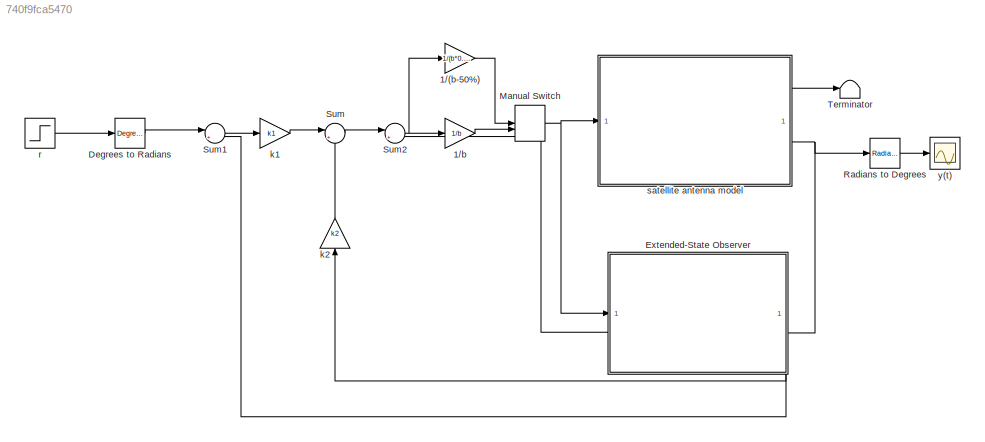
MODEL slx_740f9fca5470
KIND model
CONFIG AbsTol = auto
CONFIG EnableMultiTasking = off
CONFIG FixedStep = 0.01
CONFIG MaxStep = auto
CONFIG MinStep = auto
CONFIG RelTol = 1e-3
CONFIG SampleTimeConstraint = Unconstrained
CONFIG SolverName = ode3
CONFIG StartTime = 0.0
CONFIG StopTime = 20
BLOCK [Gain] 1//(b-50%)
  Gain = 1/(b*0.5)
BLOCK [Gain] 1//b
  Gain = 1/b
BLOCK [Reference] Degrees to Radians  REF=simulink_extras/Transformations/Degrees to
Radians
  SourceBlock = simulink_extras/Transformations/Degrees to\nRadians
  SourceType = DegreesToRadians
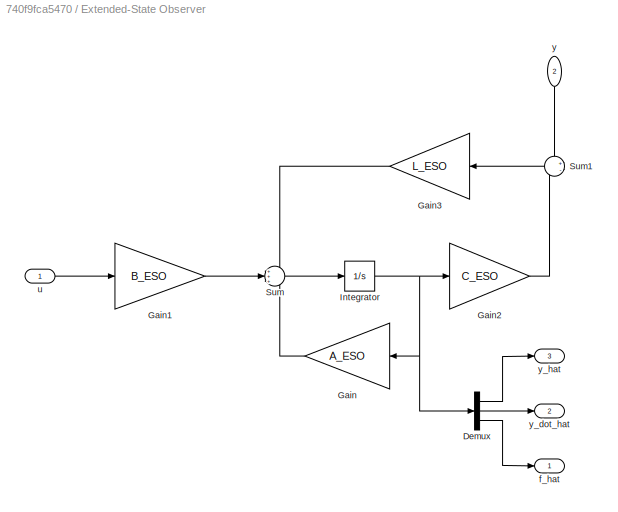
BLOCK [SubSystem] Extended-State Observer
  NameLocation = top
  PortSchema = {"entries":[{"content":{"sides":[{"content":{"connectorIds":["In1"]},"type":"ConnectorPlacement.EquallySpacedRectSide","uuid":"e39c489f-7ce3-4515-bfb3-5978cf16689b"},{"content":{"connectorIds":["In2"],"side":"RIGHT"},"type":"ConnectorPlacement.EquallySpacedRectSide","uuid":"c323375b-3042-4327-9d10-0e78d49b9c28"},{"content":{"connectorIds":[],"side":"TOP"},"type":"ConnectorPlacement.EquallySpacedRe...<+403ch>
BLOCK [Demux] Extended-State Observer/Demux
  Outputs = 3
BLOCK [Gain] Extended-State Observer/Gain
  Gain = A_ESO
  Multiplication = Matrix(K*u) (u vector)
BLOCK [Gain] Extended-State Observer/Gain1
  Gain = B_ESO
  Multiplication = Matrix(K*u) (u vector)
BLOCK [Gain] Extended-State Observer/Gain2
  Gain = C_ESO
  Multiplication = Matrix(K*u) (u vector)
BLOCK [Gain] Extended-State Observer/Gain3
  Gain = L_ESO
  Multiplication = Matrix(K*u) (u vector)
BLOCK [Integrator] Extended-State Observer/Integrator
  InitialCondition = zeros(3,1)
BLOCK [Sum] Extended-State Observer/Sum
  Inputs = +++
BLOCK [Sum] Extended-State Observer/Sum1
  Inputs = +-
BLOCK [Outport] Extended-State Observer/f_hat
BLOCK [Inport] Extended-State Observer/u
BLOCK [Inport] Extended-State Observer/y
  NameLocation = left
  Port = 2
BLOCK [Outport] Extended-State Observer/y_dot_hat
  Port = 2
BLOCK [Outport] Extended-State Observer/y_hat
  Port = 3
BLOCK [ManualSwitch] Manual Switch
BLOCK [Reference] Radians to Degrees  REF=simulink_extras/Transformations/Radians
to Degrees
  SourceBlock = simulink_extras/Transformations/Radians\nto Degrees
  SourceType = RadiansToDegrees
BLOCK [Sum] Sum
  Inputs = |+-
BLOCK [Sum] Sum1
  Inputs = |+-
BLOCK [Sum] Sum2
  Inputs = |+-
BLOCK [Terminator] Terminator
BLOCK [Gain] k1
  Gain = k1
BLOCK [Gain] k2
  Gain = k2
  NameLocation = left
BLOCK [Step] r
  After = 90
  Before = 30
  SampleTime = 0
  Time = 5
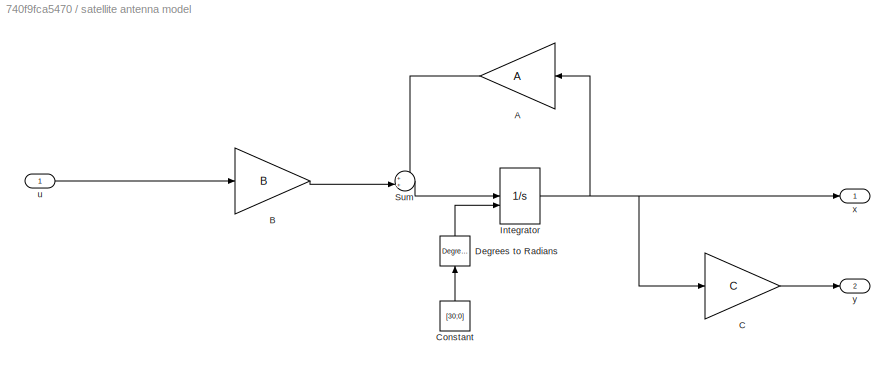
BLOCK [SubSystem] satellite antenna model
BLOCK [Gain] satellite antenna model/A
  Gain = A
  Multiplication = Matrix(K*u) (u vector)
BLOCK [Gain] satellite antenna model/B
  Gain = B
  Multiplication = Matrix(K*u) (u vector)
BLOCK [Gain] satellite antenna model/C
  Gain = C
  Multiplication = Matrix(K*u) (u vector)
BLOCK [Constant] satellite antenna model/Constant
  NameLocation = right
  Value = [30;0]
  VectorParams1D = off
BLOCK [Reference] satellite antenna model/Degrees to Radians  REF=simulink_extras/Transformations/Degrees to
Radians
  NameLocation = right
  SourceBlock = simulink_extras/Transformations/Degrees to\nRadians
  SourceType = DegreesToRadians
BLOCK [Integrator] satellite antenna model/Integrator
  InitialCondition = [0.1;0]
  InitialConditionSource = external
BLOCK [Sum] satellite antenna model/Sum
  Inputs = ++|
BLOCK [Inport] satellite antenna model/u
BLOCK [Outport] satellite antenna model/x
BLOCK [Outport] satellite antenna model/y
  Port = 2
BLOCK [Scope] y(t)
  Floating = off
  NumInputPorts = 1
  ScopeSpecificationString = Simulink.scopes.TimeScopeBlockCfg('CurrentConfiguration', extmgr.ConfigurationSet(extmgr.Configuration('Core','General UI',true),extmgr.Configuration('Core','Source UI',true),extmgr.Configuration('Sources','WiredSimulink',true),extmgr.Configuration('Visuals','Time Domain',true,'SerializedDisplays',{struct('MinYLimReal','-23.69122','MaxYLimReal','109.83818','YLabelReal','','MinYLimMag','0.00000','M...<+1404ch>
LINE 1//(b-50%):1 -> Manual Switch:1
LINE 1//b:1 -> Manual Switch:2
LINE Degrees to Radians:1 -> Sum1:1
LINE Extended-State Observer/Demux:1 -> Extended-State Observer/y_hat:1
LINE Extended-State Observer/Demux:2 -> Extended-State Observer/y_dot_hat:1
LINE Extended-State Observer/Demux:3 -> Extended-State Observer/f_hat:1
LINE Extended-State Observer/Gain1:1 -> Extended-State Observer/Sum:2
LINE Extended-State Observer/Gain2:1 -> Extended-State Observer/Sum1:2
LINE Extended-State Observer/Gain3:1 -> Extended-State Observer/Sum:1
LINE Extended-State Observer/Gain:1 -> Extended-State Observer/Sum:3
NET Extended-State Observer/Integrator:1 -> Extended-State Observer/Demux:1, Extended-State Observer/Gain2:1, Extended-State Observer/Gain:1
LINE Extended-State Observer/Sum1:1 -> Extended-State Observer/Gain3:1
LINE Extended-State Observer/Sum:1 -> Extended-State Observer/Integrator:1
LINE Extended-State Observer/u:1 -> Extended-State Observer/Gain1:1
LINE Extended-State Observer/y:1 -> Extended-State Observer/Sum1:1
LINE Extended-State Observer:1 -> Sum2:2
LINE Extended-State Observer:2 -> k2:1
LINE Extended-State Observer:3 -> Sum1:2
NET Manual Switch:1 -> Extended-State Observer:1, satellite antenna model:1
LINE Radians to Degrees:1 -> y(t):1
LINE Sum1:1 -> k1:1
NET Sum2:1 -> 1//(b-50%):1, 1//b:1
LINE Sum:1 -> Sum2:1
LINE k1:1 -> Sum:1
LINE k2:1 -> Sum:2
LINE r:1 -> Degrees to Radians:1
LINE satellite antenna model/A:1 -> satellite antenna model/Sum:1
LINE satellite antenna model/B:1 -> satellite antenna model/Sum:2
LINE satellite antenna model/C:1 -> satellite antenna model/y:1
LINE satellite antenna model/Constant:1 -> satellite antenna model/Degrees to Radians:1
LINE satellite antenna model/Degrees to Radians:1 -> satellite antenna model/Integrator:2
NET satellite antenna model/Integrator:1 -> satellite antenna model/A:1, satellite antenna model/C:1, satellite antenna model/x:1
LINE satellite antenna model/Sum:1 -> satellite antenna model/Integrator:1
LINE satellite antenna model/u:1 -> satellite antenna model/B:1
LINE satellite antenna model:1 -> Terminator:1
NET satellite antenna model:2 -> Extended-State Observer:2, Radians to Degrees:1
note: NET lines group one-source signal fan-out (src -> all destinations, sorted); 1:1 wires keep LINE
